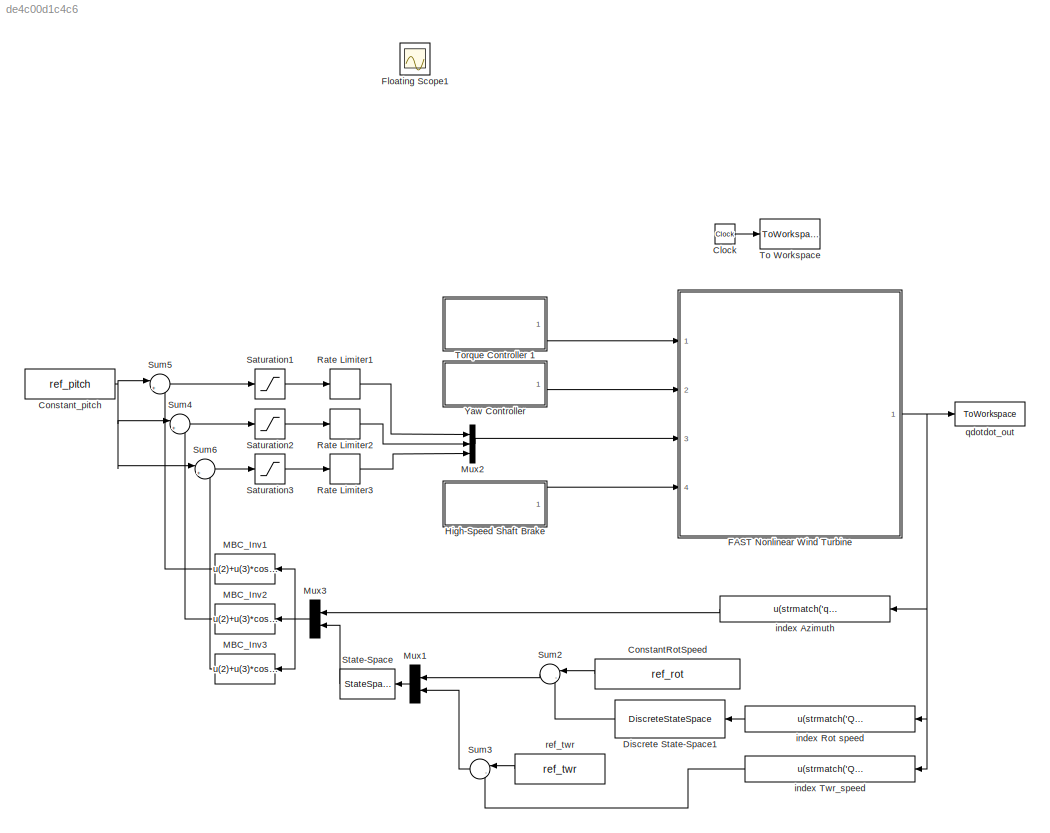
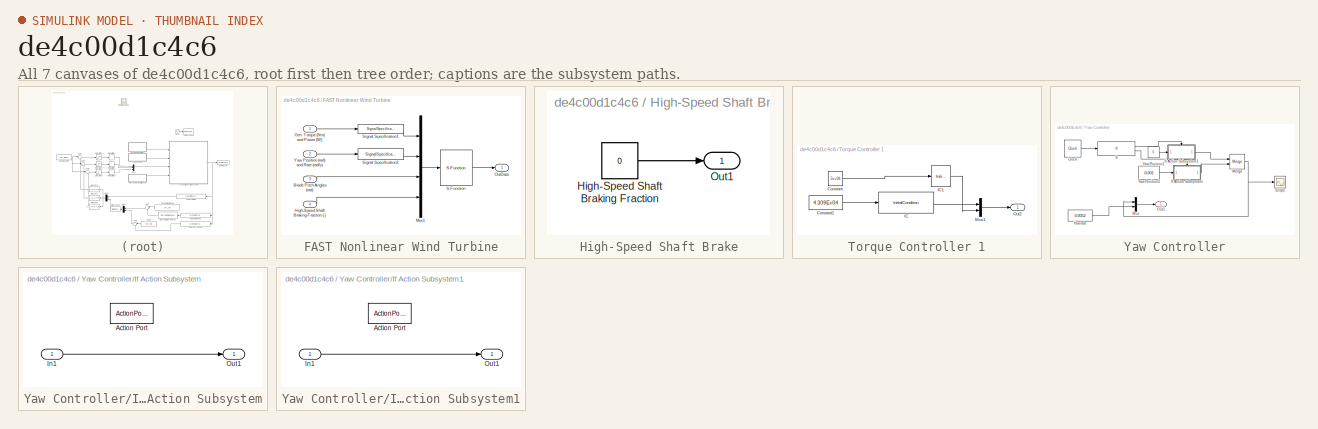
[diagram: thumbnail index - all 7 canvases of the model, root first then tree order]
MODEL slx_de4c00d1c4c6
KIND model
CONFIG AbsTol = auto
CONFIG EnableMultiTasking = on
CONFIG FixedStep = auto
CONFIG MaxStep = auto
CONFIG MinStep = auto
CONFIG RelTol = 1e-3
CONFIG SampleTimeConstraint = Unconstrained
CONFIG Solver = ode45
CONFIG SolverName = ode45
CONFIG StartTime = 0.0
CONFIG StopTime = TMax
BLOCK [Clock] Clock
BLOCK [Constant] ConstantRotSpeed
  Value = ref_rot
BLOCK [Constant] Constant_pitch
  Value = ref_pitch
BLOCK [DiscreteStateSpace] Discrete State-Space1
  A = alpha
  B = 1-alpha
  C = alpha
  D = 1-alpha
  InitialCondition = ref_rot
  SampleTime = DT
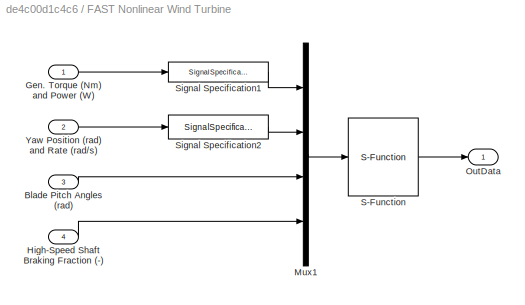
BLOCK [SubSystem] FAST Nonlinear Wind Turbine
  Ports = [4, 1]
  RequestExecContextInheritance = off
  Variant = off
BLOCK [Inport] FAST Nonlinear Wind Turbine/Blade Pitch Angles (rad)
  IconDisplay = Port number
  Port = 3
BLOCK [Inport] FAST Nonlinear Wind Turbine/Gen. Torque (Nm) and Power (W)
  IconDisplay = Port number
BLOCK [Inport] FAST Nonlinear Wind Turbine/High-Speed Shaft Braking Fraction (-)
  IconDisplay = Port number
  Port = 4
BLOCK [Mux] FAST Nonlinear Wind Turbine/Mux1
  DisplayOption = bar
  Ports = [4, 1]
BLOCK [Outport] FAST Nonlinear Wind Turbine/OutData
  IconDisplay = Port number
BLOCK [S-Function] FAST Nonlinear Wind Turbine/S-Function
  EnableBusSupport = off
  FunctionName = FAST_SFunc
  Parameters = FAST_InputFileName, TMax, 0
  Ports = [1, 1]
  SFcnIsStateOwnerBlock = off
  SFunctionDeploymentMode = off
BLOCK [SignalSpecification] FAST Nonlinear Wind Turbine/Signal Specification1
  Dimensions = 2
  OutDataTypeStr = double
  SignalType = real
BLOCK [SignalSpecification] FAST Nonlinear Wind Turbine/Signal Specification2
  Dimensions = 2
  OutDataTypeStr = double
  SignalType = real
BLOCK [Inport] FAST Nonlinear Wind Turbine/Yaw Position (rad) and Rate (rad//s)
  IconDisplay = Port number
  Port = 2
BLOCK [Scope] Floating Scope1
  IOType = viewer
  NumInputPorts = 1
  Ports = []
  ScopeSpecificationString = Simulink.scopes.TimeScopeBlockCfg('CurrentConfiguration', extmgr.ConfigurationSet(extmgr.Configuration('Core','General UI',true),extmgr.Configuration('Core','Source UI',true),extmgr.Configuration('Sources','WiredSimulink',true,'DataLoggingVariableName','ScopeData2','DataLoggingSaveFormat','StructureWithTime','DataLoggingLimitDataPoints',true,'DataLoggingDecimation','1','DataLoggingDecimateData',tr...<+1651ch>
BLOCK [SubSystem] High-Speed Shaft Brake
  Ports = [0, 1]
  RequestExecContextInheritance = off
  Variant = off
BLOCK [Constant] High-Speed Shaft Brake/High-Speed Shaft Braking Fraction
  Value = 0
BLOCK [Outport] High-Speed Shaft Brake/Out1
  IconDisplay = Port number
BLOCK [Fcn] MBC_Inv1
  Expr = u(2)+u(3)*cos(u(1))+u(4)*sin(u(1))
BLOCK [Fcn] MBC_Inv2
  Expr = u(2)+u(3)*cos(u(1)+2*pi/3)+u(4)*sin(u(1)+2*pi/3)
BLOCK [Fcn] MBC_Inv3
  Expr = u(2)+u(3)*cos(u(1)+4*pi/3)+u(4)*sin(u(1)+4*pi/3)
BLOCK [Mux] Mux1
  DisplayOption = bar
  Inputs = 2
  Ports = [2, 1]
BLOCK [Mux] Mux2
  DisplayOption = bar
  Inputs = 3
  Ports = [3, 1]
BLOCK [Mux] Mux3
  DisplayOption = bar
  Inputs = 2
  Ports = [2, 1]
BLOCK [RateLimiter] Rate Limiter1
  FallingSlewLimit = -PC_MaxRat
  LinearizeAsGain = off
  RisingSlewLimit = PC_MaxRat
  SampleTimeMode = inherited
BLOCK [RateLimiter] Rate Limiter2
  FallingSlewLimit = -PC_MaxRat
  LinearizeAsGain = off
  RisingSlewLimit = PC_MaxRat
  SampleTimeMode = inherited
BLOCK [RateLimiter] Rate Limiter3
  FallingSlewLimit = -PC_MaxRat
  LinearizeAsGain = off
  RisingSlewLimit = PC_MaxRat
  SampleTimeMode = inherited
BLOCK [Saturate] Saturation1
  InputPortMap = u0
  LowerLimit = PC_MinPit
  Ports = [1, 1]
  UpperLimit = PC_MaxPit
BLOCK [Saturate] Saturation2
  InputPortMap = u0
  LowerLimit = PC_MinPit
  Ports = [1, 1]
  UpperLimit = PC_MaxPit
BLOCK [Saturate] Saturation3
  InputPortMap = u0
  LowerLimit = PC_MinPit
  Ports = [1, 1]
  UpperLimit = PC_MaxPit
BLOCK [StateSpace] State-Space
  A = Lbar
  B = Kbar'
  C = Gbar
  D = Dbar
  InitialCondition = 0
  Ports = [1, 1]
BLOCK [Sum] Sum2
  IconShape = round
  InputSameDT = off
  Inputs = |-+
  OutDataTypeStr = Inherit: Inherit via internal rule
  Ports = [2, 1]
  SaturateOnIntegerOverflow = off
BLOCK [Sum] Sum3
  IconShape = round
  InputSameDT = off
  Inputs = |-+
  OutDataTypeStr = Inherit: Inherit via internal rule
  Ports = [2, 1]
  SaturateOnIntegerOverflow = off
BLOCK [Sum] Sum4
  IconShape = round
  InputSameDT = off
  Inputs = |++
  OutDataTypeStr = Inherit: Inherit via internal rule
  Ports = [2, 1]
  SaturateOnIntegerOverflow = off
BLOCK [Sum] Sum5
  IconShape = round
  InputSameDT = off
  Inputs = |++
  OutDataTypeStr = Inherit: Inherit via internal rule
  Ports = [2, 1]
  SaturateOnIntegerOverflow = off
BLOCK [Sum] Sum6
  IconShape = round
  InputSameDT = off
  Inputs = |++
  OutDataTypeStr = Inherit: Inherit via internal rule
  Ports = [2, 1]
  SaturateOnIntegerOverflow = off
BLOCK [ToWorkspace] To Workspace
  MaxDataPoints = inf
  Ports = [1]
  SampleTime = -1
  VariableName = Time
BLOCK [SubSystem] Torque Controller 1
  Ports = [0, 1]
  RequestExecContextInheritance = off
  Variant = off
BLOCK [Constant] Torque Controller 1/Constant
  Value = 5e+06
BLOCK [Constant] Torque Controller 1/Constant1
  Value = 4.309E+04
BLOCK [InitialCondition] Torque Controller 1/IC
  Value = 4.309E+04
BLOCK [InitialCondition] Torque Controller 1/IC1
  Value = 5e+06
BLOCK [Mux] Torque Controller 1/Mux1
  DisplayOption = bar
  Inputs = 2
  Ports = [2, 1]
BLOCK [Outport] Torque Controller 1/Out2
  IconDisplay = Port number
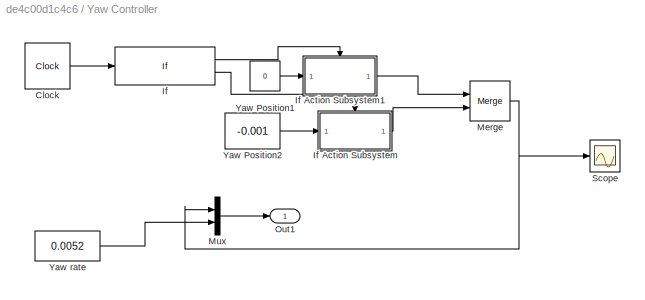
BLOCK [SubSystem] Yaw Controller
  Ports = [0, 1]
  RequestExecContextInheritance = off
  Variant = off
BLOCK [Clock] Yaw Controller/Clock
  DisplayTime = on
BLOCK [If] Yaw Controller/If
  IfExpression = u1 < 35
  Ports = [1, 2]
BLOCK [SubSystem] Yaw Controller/If Action Subsystem
  Ports = [1, 1, 0, 0, 0, 0, 0, 1]
  RequestExecContextInheritance = off
  TreatAsAtomicUnit = on
  Variant = off
BLOCK [ActionPort] Yaw Controller/If Action Subsystem/Action Port
  ActionType = else
BLOCK [Inport] Yaw Controller/If Action Subsystem/In1
  IconDisplay = Port number
BLOCK [Outport] Yaw Controller/If Action Subsystem/Out1
  IconDisplay = Port number
BLOCK [SubSystem] Yaw Controller/If Action Subsystem1
  Ports = [1, 1, 0, 0, 0, 0, 0, 1]
  RequestExecContextInheritance = off
  TreatAsAtomicUnit = on
  Variant = off
BLOCK [ActionPort] Yaw Controller/If Action Subsystem1/Action Port
  ActionType = then
BLOCK [Inport] Yaw Controller/If Action Subsystem1/In1
  IconDisplay = Port number
BLOCK [Outport] Yaw Controller/If Action Subsystem1/Out1
  IconDisplay = Port number
BLOCK [Merge] Yaw Controller/Merge
  Ports = [2, 1]
BLOCK [Mux] Yaw Controller/Mux
  DisplayOption = bar
  Inputs = 2
  Ports = [2, 1]
BLOCK [Outport] Yaw Controller/Out1
  IconDisplay = Port number
BLOCK [Scope] Yaw Controller/Scope
  NumInputPorts = 1
  Ports = [1]
  ScopeSpecificationString = Simulink.scopes.TimeScopeBlockCfg('CurrentConfiguration', extmgr.ConfigurationSet(extmgr.Configuration('Core','General UI',true),extmgr.Configuration('Core','Source UI',true),extmgr.Configuration('Sources','WiredSimulink',true,'DataLoggingVariableName','ScopeData1'),extmgr.Configuration('Visuals','Time Domain',true,'SerializedDisplays',{struct('MinYLimReal','-0.00113','MaxYLimReal','0.00012','YLab...<+1393ch>
BLOCK [Constant] Yaw Controller/Yaw Position1
  Value = 0
BLOCK [Constant] Yaw Controller/Yaw Position2
  Value = -0.001
BLOCK [Constant] Yaw Controller/Yaw rate
  Value = 0.0052
BLOCK [Fcn] index Azimuth
  Expr = u(strmatch('q_GeAz', OutList))
BLOCK [Fcn] index Rot speed
  Expr = u(strmatch('QD_GeAz', OutList))
BLOCK [Fcn] index Twr_speed
  Expr = u(strmatch('QD_TFA1', OutList))
BLOCK [ToWorkspace] qdotdot_out
  MaxDataPoints = inf
  Ports = [1]
  SampleTime = -1
  VariableName = OutData
BLOCK [Constant] ref_twr
  Value = ref_twr
LINE Clock:1 -> To Workspace:1
LINE ConstantRotSpeed:1 -> Sum2:1
NET Constant_pitch:1 -> Sum4:1, Sum5:1, Sum6:1
LINE Discrete State-Space1:1 -> Sum2:2
LINE FAST Nonlinear Wind Turbine/Blade Pitch Angles (rad):1 -> FAST Nonlinear Wind Turbine/Mux1:3
LINE FAST Nonlinear Wind Turbine/Gen. Torque (Nm) and Power (W):1 -> FAST Nonlinear Wind Turbine/Signal Specification1:1
LINE FAST Nonlinear Wind Turbine/High-Speed Shaft Braking Fraction (-):1 -> FAST Nonlinear Wind Turbine/Mux1:4
LINE FAST Nonlinear Wind Turbine/Mux1:1 -> FAST Nonlinear Wind Turbine/S-Function:1
LINE FAST Nonlinear Wind Turbine/S-Function:1 -> FAST Nonlinear Wind Turbine/OutData:1
LINE FAST Nonlinear Wind Turbine/Signal Specification1:1 -> FAST Nonlinear Wind Turbine/Mux1:1
LINE FAST Nonlinear Wind Turbine/Signal Specification2:1 -> FAST Nonlinear Wind Turbine/Mux1:2
LINE FAST Nonlinear Wind Turbine/Yaw Position (rad) and Rate (rad//s):1 -> FAST Nonlinear Wind Turbine/Signal Specification2:1
NET FAST Nonlinear Wind Turbine:1 -> index Azimuth:1, index Rot speed:1, index Twr_speed:1, qdotdot_out:1
LINE High-Speed Shaft Brake/High-Speed Shaft Braking Fraction:1 -> High-Speed Shaft Brake/Out1:1
LINE High-Speed Shaft Brake:1 -> FAST Nonlinear Wind Turbine:4
LINE MBC_Inv1:1 -> Sum5:2
LINE MBC_Inv2:1 -> Sum4:2
LINE MBC_Inv3:1 -> Sum6:2
LINE Mux1:1 -> State-Space:1
LINE Mux2:1 -> FAST Nonlinear Wind Turbine:3
NET Mux3:1 -> MBC_Inv1:1, MBC_Inv2:1, MBC_Inv3:1
LINE Rate Limiter1:1 -> Mux2:1
LINE Rate Limiter2:1 -> Mux2:2
LINE Rate Limiter3:1 -> Mux2:3
LINE Saturation1:1 -> Rate Limiter1:1
LINE Saturation2:1 -> Rate Limiter2:1
LINE Saturation3:1 -> Rate Limiter3:1
LINE State-Space:1 -> Mux3:2
LINE Sum2:1 -> Mux1:1
LINE Sum3:1 -> Mux1:2
LINE Sum4:1 -> Saturation2:1
LINE Sum5:1 -> Saturation1:1
LINE Sum6:1 -> Saturation3:1
LINE Torque Controller 1/Constant1:1 -> Torque Controller 1/IC:1
LINE Torque Controller 1/Constant:1 -> Torque Controller 1/IC1:1
LINE Torque Controller 1/IC1:1 -> Torque Controller 1/Mux1:2
LINE Torque Controller 1/IC:1 -> Torque Controller 1/Mux1:1
LINE Torque Controller 1/Mux1:1 -> Torque Controller 1/Out2:1
LINE Torque Controller 1:1 -> FAST Nonlinear Wind Turbine:1
LINE Yaw Controller/Clock:1 -> Yaw Controller/If:1
LINE Yaw Controller/If Action Subsystem/In1:1 -> Yaw Controller/If Action Subsystem/Out1:1
LINE Yaw Controller/If Action Subsystem1/In1:1 -> Yaw Controller/If Action Subsystem1/Out1:1
LINE Yaw Controller/If Action Subsystem1:1 -> Yaw Controller/Merge:1
LINE Yaw Controller/If Action Subsystem:1 -> Yaw Controller/Merge:2
LINE Yaw Controller/If:1 -> Yaw Controller/If Action Subsystem1:ifaction
LINE Yaw Controller/If:2 -> Yaw Controller/If Action Subsystem:ifaction
NET Yaw Controller/Merge:1 -> Yaw Controller/Mux:1, Yaw Controller/Scope:1
LINE Yaw Controller/Mux:1 -> Yaw Controller/Out1:1
LINE Yaw Controller/Yaw Position1:1 -> Yaw Controller/If Action Subsystem1:1
LINE Yaw Controller/Yaw Position2:1 -> Yaw Controller/If Action Subsystem:1
LINE Yaw Controller/Yaw rate:1 -> Yaw Controller/Mux:2
LINE Yaw Controller:1 -> FAST Nonlinear Wind Turbine:2
LINE index Azimuth:1 -> Mux3:1
LINE index Rot speed:1 -> Discrete State-Space1:1
LINE index Twr_speed:1 -> Sum3:2
LINE ref_twr:1 -> Sum3:1
note: NET lines group one-source signal fan-out (src -> all destinations, sorted); 1:1 wires keep LINE
